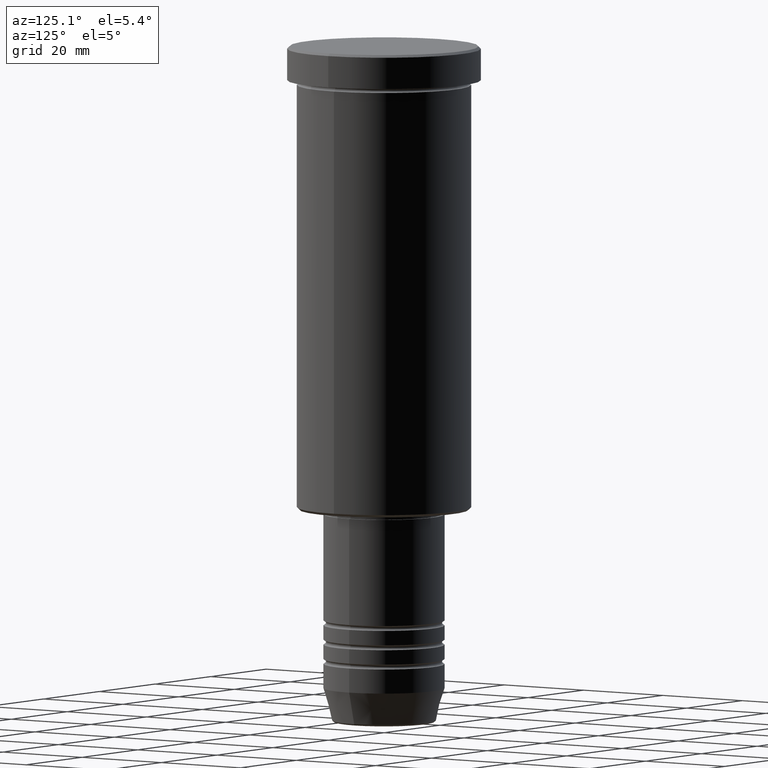
[diagram: clean part render]
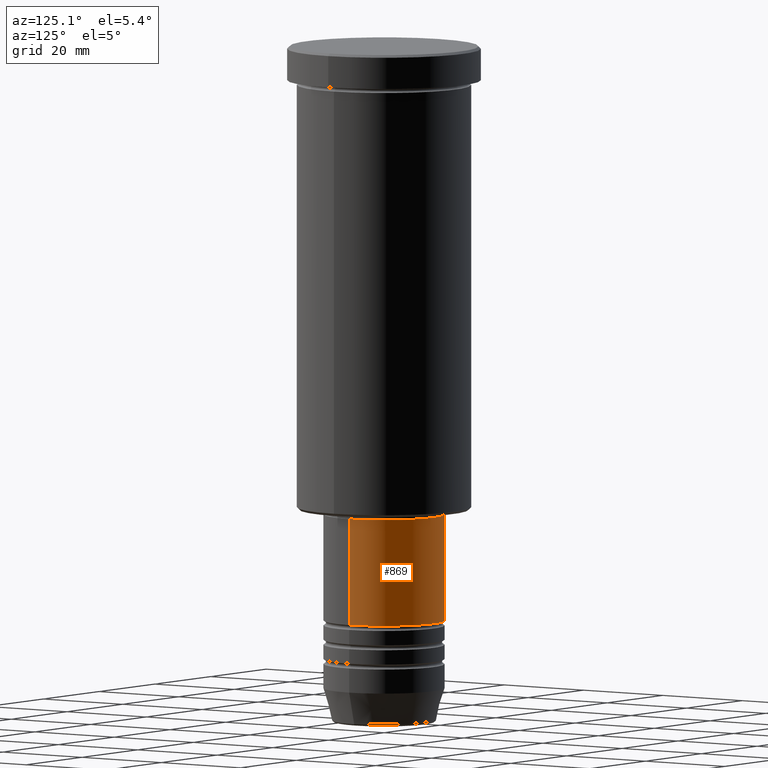
[diagram: same view with one face highlighted and labeled with its STEP entity id]
A machine part, auxiliary view. The second image highlights one B-rep face of the part: STEP entity #869.
In plain terms, the highlighted cylindrical surface (partial cylindrical patch) has radius 12.5 mm, axis along (-0, -0, 1).
Its self-contained STEP definition (entity closure, byte-faithful):
#20 = DIRECTION ( 'NONE',  ( -0.000000000000000000, -0.000000000000000000, 1.000000000000000000 ) ) ;
#112 = CARTESIAN_POINT ( 'NONE',  ( 12.50000000000000000, 0.000000000000000000, -97.00000000000002842 ) ) ;
#223 = EDGE_CURVE ( 'NONE', #903, #1114, #487, .T. ) ;
#225 = VERTEX_POINT ( 'NONE', #388 ) ;
#228 = DIRECTION ( 'NONE',  ( 1.000000000000000000, 0.000000000000000000, 0.000000000000000000 ) ) ;
#231 = VERTEX_POINT ( 'NONE', #770 ) ;
#261 = DIRECTION ( 'NONE',  ( 1.000000000000000000, 0.000000000000000000, 0.000000000000000000 ) ) ;
#292 = CARTESIAN_POINT ( 'NONE',  ( 0.000000000000000000, 0.000000000000000000, -119.0000000000000000 ) ) ;
#314 = EDGE_LOOP ( 'NONE', ( #843, #1041, #780, #970 ) ) ;
#329 = CYLINDRICAL_SURFACE ( 'NONE', #386, 12.50000000000000000 ) ;
#369 = AXIS2_PLACEMENT_3D ( 'NONE', #544, #455, #814 ) ;
#386 = AXIS2_PLACEMENT_3D ( 'NONE', #415, #779, #261 ) ;
#388 = CARTESIAN_POINT ( 'NONE',  ( -12.50000000000000000, 1.530808498934191521E-15, -119.0000000000000000 ) ) ;
#415 = CARTESIAN_POINT ( 'NONE',  ( 0.000000000000000000, 0.000000000000000000, 0.000000000000000000 ) ) ;
#436 = VECTOR ( 'NONE', #847, 1000.000000000000000 ) ;
#455 = DIRECTION ( 'NONE',  ( -0.000000000000000000, -0.000000000000000000, 1.000000000000000000 ) ) ;
#487 = LINE ( 'NONE', #1117, #436 ) ;
#544 = CARTESIAN_POINT ( 'NONE',  ( 0.000000000000000000, 0.000000000000000000, -97.00000000000002842 ) ) ;
#620 = CARTESIAN_POINT ( 'NONE',  ( 12.50000000000000000, 0.000000000000000000, -119.0000000000000000 ) ) ;
#626 = LINE ( 'NONE', #988, #891 ) ;
#672 = EDGE_CURVE ( 'NONE', #903, #225, #831, .T. ) ;
#685 = FACE_OUTER_BOUND ( 'NONE', #314, .T. ) ;
#770 = CARTESIAN_POINT ( 'NONE',  ( -12.50000000000000000, 1.530808498934191521E-15, -97.00000000000002842 ) ) ;
#779 = DIRECTION ( 'NONE',  ( -0.000000000000000000, -0.000000000000000000, 1.000000000000000000 ) ) ;
#780 = ORIENTED_EDGE ( 'NONE', *, *, #1064, .F. ) ;
#814 = DIRECTION ( 'NONE',  ( 1.000000000000000000, 0.000000000000000000, 0.000000000000000000 ) ) ;
#831 = CIRCLE ( 'NONE', #1020, 12.50000000000000000 ) ;
#843 = ORIENTED_EDGE ( 'NONE', *, *, #672, .T. ) ;
#847 = DIRECTION ( 'NONE',  ( -0.000000000000000000, -0.000000000000000000, 1.000000000000000000 ) ) ;
#869 = ADVANCED_FACE ( 'NONE', ( #685 ), #329, .T. ) ;
#891 = VECTOR ( 'NONE', #1162, 1000.000000000000000 ) ;
#903 = VERTEX_POINT ( 'NONE', #620 ) ;
#970 = ORIENTED_EDGE ( 'NONE', *, *, #223, .F. ) ;
#988 = CARTESIAN_POINT ( 'NONE',  ( -12.50000000000000000, 1.530808498934191521E-15, 0.000000000000000000 ) ) ;
#992 = EDGE_CURVE ( 'NONE', #225, #231, #626, .T. ) ;
#1020 = AXIS2_PLACEMENT_3D ( 'NONE', #292, #20, #228 ) ;
#1041 = ORIENTED_EDGE ( 'NONE', *, *, #992, .T. ) ;
#1064 = EDGE_CURVE ( 'NONE', #1114, #231, #1160, .T. ) ;
#1114 = VERTEX_POINT ( 'NONE', #112 ) ;
#1117 = CARTESIAN_POINT ( 'NONE',  ( 12.50000000000000000, 0.000000000000000000, 0.000000000000000000 ) ) ;
#1160 = CIRCLE ( 'NONE', #369, 12.50000000000000000 ) ;
#1162 = DIRECTION ( 'NONE',  ( -0.000000000000000000, -0.000000000000000000, 1.000000000000000000 ) ) ;